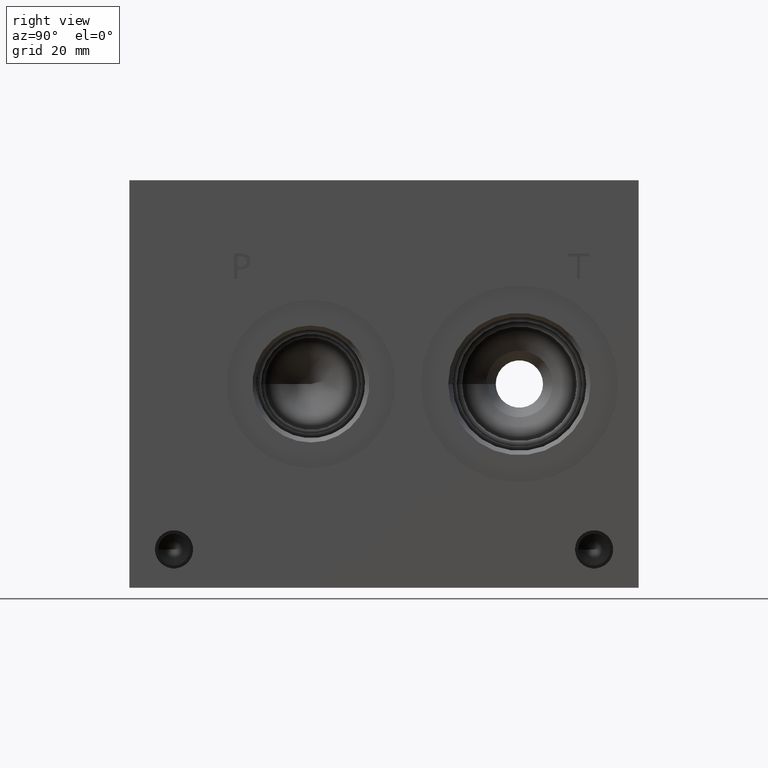
[diagram: clean part render]
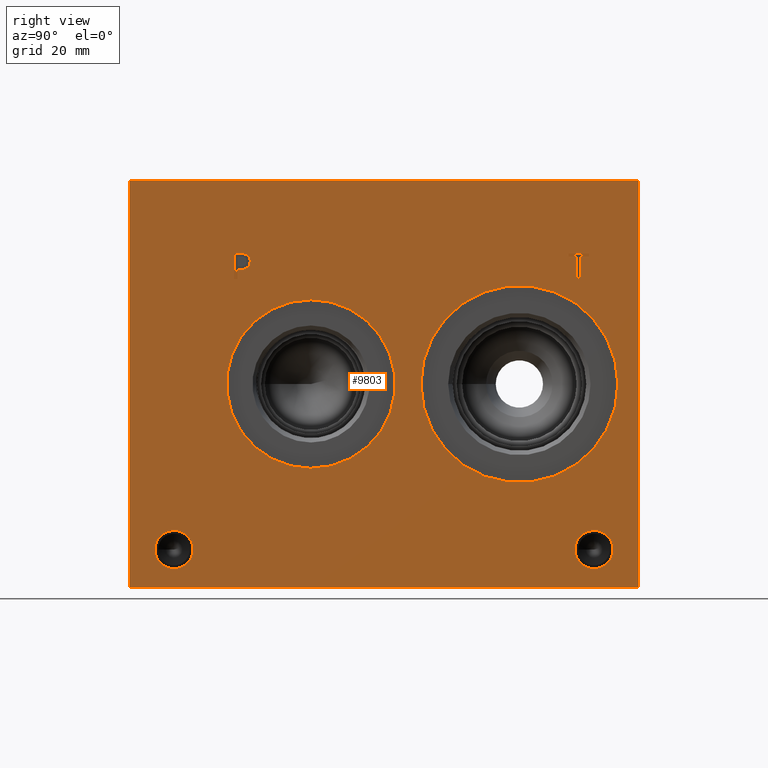
[diagram: same view with one face highlighted and labeled with its STEP entity id]
A machine part, right view. The second image highlights one B-rep face of the part: STEP entity #9803.
In plain terms, the highlighted planar face has unit normal (1, 0, 0).
Its self-contained STEP definition (entity closure, byte-faithful):
#103=CIRCLE('',#10338,21.0185);
#104=CIRCLE('',#10339,21.0185);
#105=CIRCLE('',#10340,24.5618);
#106=CIRCLE('',#10341,24.5618);
#107=CIRCLE('',#10342,4.7625);
#108=CIRCLE('',#10343,4.7625);
#109=CIRCLE('',#10344,4.7625);
#110=CIRCLE('',#10345,4.7625);
#296=FACE_BOUND('',#1307,.T.);
#297=FACE_BOUND('',#1308,.T.);
#298=FACE_BOUND('',#1309,.T.);
#299=FACE_BOUND('',#1310,.T.);
#300=FACE_BOUND('',#1311,.T.);
#301=FACE_BOUND('',#1312,.T.);
#378=B_SPLINE_CURVE_WITH_KNOTS('',2,(#13229,#13230,#13231,#13232),
 .UNSPECIFIED.,.F.,.F.,(3,1,3),(0.,1.,2.),.UNSPECIFIED.);
#380=B_SPLINE_CURVE_WITH_KNOTS('',2,(#13250,#13251,#13252,#13253),
 .UNSPECIFIED.,.F.,.F.,(3,1,3),(0.,1.,2.),.UNSPECIFIED.);
#382=B_SPLINE_CURVE_WITH_KNOTS('',2,(#13299,#13300,#13301,#13302),
 .UNSPECIFIED.,.F.,.F.,(3,1,3),(0.,1.,2.),.UNSPECIFIED.);
#384=B_SPLINE_CURVE_WITH_KNOTS('',2,(#13317,#13318,#13319,#13320),
 .UNSPECIFIED.,.F.,.F.,(3,1,3),(0.,1.,2.),.UNSPECIFIED.);
#777=FACE_OUTER_BOUND('',#1306,.T.);
#1306=EDGE_LOOP('',(#6341,#6342,#6343,#6344));
#1307=EDGE_LOOP('',(#6345,#6346,#6347,#6348,#6349,#6350,#6351,#6352));
#1308=EDGE_LOOP('',(#6353,#6354));
#1309=EDGE_LOOP('',(#6355,#6356));
#1310=EDGE_LOOP('',(#6357,#6358));
#1311=EDGE_LOOP('',(#6359,#6360));
#1312=EDGE_LOOP('',(#6361,#6362,#6363,#6364,#6365,#6366,#6367,#6368,#6369));
#1882=LINE('',#13079,#2857);
#1886=LINE('',#13087,#2861);
#1889=LINE('',#13093,#2864);
#1892=LINE('',#13099,#2867);
#1895=LINE('',#13105,#2870);
#1898=LINE('',#13111,#2873);
#1901=LINE('',#13117,#2876);
#1904=LINE('',#13122,#2879);
#1922=LINE('',#13262,#2897);
#1925=LINE('',#13268,#2900);
#1928=LINE('',#13274,#2903);
#1931=LINE('',#13280,#2906);
#1934=LINE('',#13286,#2909);
#1938=LINE('',#13329,#2913);
#1939=LINE('',#13331,#2914);
#1940=LINE('',#13333,#2915);
#1941=LINE('',#13334,#2916);
#2857=VECTOR('',#10916,10.);
#2861=VECTOR('',#10922,10.);
#2864=VECTOR('',#10927,10.);
#2867=VECTOR('',#10932,10.);
#2870=VECTOR('',#10937,10.);
#2873=VECTOR('',#10942,10.);
#2876=VECTOR('',#10947,10.);
#2879=VECTOR('',#10952,10.);
#2897=VECTOR('',#10980,10.);
#2900=VECTOR('',#10985,10.);
#2903=VECTOR('',#10990,10.);
#2906=VECTOR('',#10995,10.);
#2909=VECTOR('',#11000,10.);
#2913=VECTOR('',#11008,10.);
#2914=VECTOR('',#11009,10.);
#2915=VECTOR('',#11010,10.);
#2916=VECTOR('',#11011,10.);
#3832=VERTEX_POINT('',#13077);
#3833=VERTEX_POINT('',#13078);
#3836=VERTEX_POINT('',#13086);
#3838=VERTEX_POINT('',#13092);
#3840=VERTEX_POINT('',#13098);
#3842=VERTEX_POINT('',#13104);
#3844=VERTEX_POINT('',#13110);
#3846=VERTEX_POINT('',#13116);
#3862=VERTEX_POINT('',#13227);
#3863=VERTEX_POINT('',#13228);
#3866=VERTEX_POINT('',#13249);
#3868=VERTEX_POINT('',#13261);
#3870=VERTEX_POINT('',#13267);
#3872=VERTEX_POINT('',#13273);
#3874=VERTEX_POINT('',#13279);
#3876=VERTEX_POINT('',#13285);
#3878=VERTEX_POINT('',#13298);
#3880=VERTEX_POINT('',#13327);
#3881=VERTEX_POINT('',#13328);
#3882=VERTEX_POINT('',#13330);
#3883=VERTEX_POINT('',#13332);
#3884=VERTEX_POINT('',#13335);
#3885=VERTEX_POINT('',#13336);
#3886=VERTEX_POINT('',#13339);
#3887=VERTEX_POINT('',#13340);
#3888=VERTEX_POINT('',#13343);
#3889=VERTEX_POINT('',#13344);
#3890=VERTEX_POINT('',#13347);
#3891=VERTEX_POINT('',#13348);
#4800=EDGE_CURVE('',#3832,#3833,#1882,.T.);
#4804=EDGE_CURVE('',#3836,#3832,#1886,.T.);
#4807=EDGE_CURVE('',#3838,#3836,#1889,.T.);
#4810=EDGE_CURVE('',#3840,#3838,#1892,.T.);
#4813=EDGE_CURVE('',#3842,#3840,#1895,.T.);
#4816=EDGE_CURVE('',#3844,#3842,#1898,.T.);
#4819=EDGE_CURVE('',#3846,#3844,#1901,.T.);
#4822=EDGE_CURVE('',#3833,#3846,#1904,.T.);
#4845=EDGE_CURVE('',#3862,#3863,#378,.T.);
#4849=EDGE_CURVE('',#3866,#3862,#380,.T.);
#4852=EDGE_CURVE('',#3868,#3866,#1922,.T.);
#4855=EDGE_CURVE('',#3870,#3868,#1925,.T.);
#4858=EDGE_CURVE('',#3872,#3870,#1928,.T.);
#4861=EDGE_CURVE('',#3874,#3872,#1931,.T.);
#4864=EDGE_CURVE('',#3876,#3874,#1934,.T.);
#4867=EDGE_CURVE('',#3878,#3876,#382,.T.);
#4870=EDGE_CURVE('',#3863,#3878,#384,.T.);
#4872=EDGE_CURVE('',#3880,#3881,#1938,.T.);
#4873=EDGE_CURVE('',#3881,#3882,#1939,.T.);
#4874=EDGE_CURVE('',#3883,#3882,#1940,.T.);
#4875=EDGE_CURVE('',#3880,#3883,#1941,.T.);
#4876=EDGE_CURVE('',#3884,#3885,#103,.T.);
#4877=EDGE_CURVE('',#3885,#3884,#104,.T.);
#4878=EDGE_CURVE('',#3886,#3887,#105,.T.);
#4879=EDGE_CURVE('',#3887,#3886,#106,.T.);
#4880=EDGE_CURVE('',#3888,#3889,#107,.T.);
#4881=EDGE_CURVE('',#3889,#3888,#108,.T.);
#4882=EDGE_CURVE('',#3890,#3891,#109,.T.);
#4883=EDGE_CURVE('',#3891,#3890,#110,.T.);
#6341=ORIENTED_EDGE('',*,*,#4872,.T.);
#6342=ORIENTED_EDGE('',*,*,#4873,.T.);
#6343=ORIENTED_EDGE('',*,*,#4874,.F.);
#6344=ORIENTED_EDGE('',*,*,#4875,.F.);
#6345=ORIENTED_EDGE('',*,*,#4800,.T.);
#6346=ORIENTED_EDGE('',*,*,#4822,.T.);
#6347=ORIENTED_EDGE('',*,*,#4819,.T.);
#6348=ORIENTED_EDGE('',*,*,#4816,.T.);
#6349=ORIENTED_EDGE('',*,*,#4813,.T.);
#6350=ORIENTED_EDGE('',*,*,#4810,.T.);
#6351=ORIENTED_EDGE('',*,*,#4807,.T.);
#6352=ORIENTED_EDGE('',*,*,#4804,.T.);
#6353=ORIENTED_EDGE('',*,*,#4876,.T.);
#6354=ORIENTED_EDGE('',*,*,#4877,.T.);
#6355=ORIENTED_EDGE('',*,*,#4878,.T.);
#6356=ORIENTED_EDGE('',*,*,#4879,.T.);
#6357=ORIENTED_EDGE('',*,*,#4880,.T.);
#6358=ORIENTED_EDGE('',*,*,#4881,.T.);
#6359=ORIENTED_EDGE('',*,*,#4882,.T.);
#6360=ORIENTED_EDGE('',*,*,#4883,.T.);
#6361=ORIENTED_EDGE('',*,*,#4845,.T.);
#6362=ORIENTED_EDGE('',*,*,#4870,.T.);
#6363=ORIENTED_EDGE('',*,*,#4867,.T.);
#6364=ORIENTED_EDGE('',*,*,#4864,.T.);
#6365=ORIENTED_EDGE('',*,*,#4861,.T.);
#6366=ORIENTED_EDGE('',*,*,#4858,.T.);
#6367=ORIENTED_EDGE('',*,*,#4855,.T.);
#6368=ORIENTED_EDGE('',*,*,#4852,.T.);
#6369=ORIENTED_EDGE('',*,*,#4849,.T.);
#9081=PLANE('',#10337);
#9803=ADVANCED_FACE('',(#777,#296,#297,#298,#299,#300,#301),#9081,.T.);
#10337=AXIS2_PLACEMENT_3D('',#13326,#11006,#11007);
#10338=AXIS2_PLACEMENT_3D('',#13337,#11012,#11013);
#10339=AXIS2_PLACEMENT_3D('',#13338,#11014,#11015);
#10340=AXIS2_PLACEMENT_3D('',#13341,#11016,#11017);
#10341=AXIS2_PLACEMENT_3D('',#13342,#11018,#11019);
#10342=AXIS2_PLACEMENT_3D('',#13345,#11020,#11021);
#10343=AXIS2_PLACEMENT_3D('',#13346,#11022,#11023);
#10344=AXIS2_PLACEMENT_3D('',#13349,#11024,#11025);
#10345=AXIS2_PLACEMENT_3D('',#13350,#11026,#11027);
#10916=DIRECTION('',(0.,-1.,0.));
#10922=DIRECTION('',(0.,0.,-1.));
#10927=DIRECTION('',(0.,-1.,0.));
#10932=DIRECTION('',(0.,0.,-1.));
#10937=DIRECTION('',(0.,1.,0.));
#10942=DIRECTION('',(0.,0.,1.));
#10947=DIRECTION('',(0.,-1.,0.));
#10952=DIRECTION('',(0.,0.,1.));
#10980=DIRECTION('',(0.,1.,0.));
#10985=DIRECTION('',(0.,0.,1.));
#10990=DIRECTION('',(0.,-1.,0.));
#10995=DIRECTION('',(0.,0.,-1.));
#11000=DIRECTION('',(0.,-1.,0.));
#11006=DIRECTION('center_axis',(1.,0.,0.));
#11007=DIRECTION('ref_axis',(0.,1.,0.));
#11008=DIRECTION('',(0.,1.,0.));
#11009=DIRECTION('',(0.,0.,1.));
#11010=DIRECTION('',(0.,1.,0.));
#11011=DIRECTION('',(0.,0.,1.));
#11012=DIRECTION('center_axis',(-1.,0.,0.));
#11013=DIRECTION('ref_axis',(0.,0.,-1.));
#11014=DIRECTION('center_axis',(-1.,0.,0.));
#11015=DIRECTION('ref_axis',(0.,0.,-1.));
#11016=DIRECTION('center_axis',(-1.,0.,0.));
#11017=DIRECTION('ref_axis',(0.,1.,0.));
#11018=DIRECTION('center_axis',(-1.,0.,0.));
#11019=DIRECTION('ref_axis',(0.,1.,0.));
#11020=DIRECTION('center_axis',(-1.,0.,0.));
#11021=DIRECTION('ref_axis',(0.,1.,0.));
#11022=DIRECTION('center_axis',(-1.,0.,0.));
#11023=DIRECTION('ref_axis',(0.,1.,0.));
#11024=DIRECTION('center_axis',(-1.,0.,0.));
#11025=DIRECTION('ref_axis',(0.,1.,0.));
#11026=DIRECTION('center_axis',(-1.,0.,0.));
#11027=DIRECTION('ref_axis',(0.,1.,0.));
#13077=CARTESIAN_POINT('',(82.55,112.417765271453,76.962));
#13078=CARTESIAN_POINT('',(82.55,111.573843079914,76.962));
#13079=CARTESIAN_POINT('',(82.55,56.2088826357265,76.962));
#13086=CARTESIAN_POINT('',(82.55,112.417765271453,82.5607033194815));
#13087=CARTESIAN_POINT('',(82.55,112.417765271453,41.2803516597408));
#13092=CARTESIAN_POINT('',(82.55,114.548154218388,82.5607033194815));
#13093=CARTESIAN_POINT('',(82.55,57.274077109194,82.5607033194815));
#13098=CARTESIAN_POINT('',(82.55,114.548154218388,83.3119999046326));
#13099=CARTESIAN_POINT('',(82.55,114.548154218388,41.6559999523163));
#13104=CARTESIAN_POINT('',(82.55,109.443454132978,83.3119999046326));
#13105=CARTESIAN_POINT('',(82.55,54.7217270664892,83.3119999046326));
#13110=CARTESIAN_POINT('',(82.55,109.443454132978,82.5607033194815));
#13111=CARTESIAN_POINT('',(82.55,109.443454132978,41.2803516597408));
#13116=CARTESIAN_POINT('',(82.55,111.573843079914,82.5607033194815));
#13117=CARTESIAN_POINT('',(82.55,55.7869215399568,82.5607033194815));
#13122=CARTESIAN_POINT('',(82.55,111.573843079914,38.481));
#13227=CARTESIAN_POINT('',(82.55,29.3767672023594,82.9157681439707));
#13228=CARTESIAN_POINT('',(82.55,30.133209654532,81.397737372604));
#13229=CARTESIAN_POINT('Ctrl Pts',(82.55,29.3767672023594,82.9157681439707));
#13230=CARTESIAN_POINT('Ctrl Pts',(82.55,29.7318320268486,82.6739123939564));
#13231=CARTESIAN_POINT('Ctrl Pts',(82.55,30.133209654532,81.9277616758269));
#13232=CARTESIAN_POINT('Ctrl Pts',(82.55,30.133209654532,81.397737372604));
#13249=CARTESIAN_POINT('',(82.55,27.7146521543883,83.3119999046326));
#13250=CARTESIAN_POINT('Ctrl Pts',(82.55,27.7146521543883,83.3119999046326));
#13251=CARTESIAN_POINT('Ctrl Pts',(82.55,28.2806975267624,83.3119999046326));
#13252=CARTESIAN_POINT('Ctrl Pts',(82.55,29.073161048086,83.1267486918556));
#13253=CARTESIAN_POINT('Ctrl Pts',(82.55,29.3767672023594,82.9157681439707));
#13261=CARTESIAN_POINT('',(82.55,26.1194333776978,83.3119999046326));
#13262=CARTESIAN_POINT('',(82.55,13.0597166888489,83.3119999046326));
#13267=CARTESIAN_POINT('',(82.55,26.1194333776978,76.962));
#13268=CARTESIAN_POINT('',(82.55,26.1194333776978,38.481));
#13273=CARTESIAN_POINT('',(82.55,26.9633555692373,76.962));
#13274=CARTESIAN_POINT('',(82.55,13.4816777846186,76.962));
#13279=CARTESIAN_POINT('',(82.55,26.9633555692373,79.3290988299279));
#13280=CARTESIAN_POINT('',(82.55,26.9633555692373,39.6645494149639));
#13285=CARTESIAN_POINT('',(82.55,27.6786310852372,79.3290988299279));
#13286=CARTESIAN_POINT('',(82.55,13.8393155426186,79.3290988299279));
#13298=CARTESIAN_POINT('',(82.55,29.5774560162011,79.9877698086904));
#13299=CARTESIAN_POINT('Ctrl Pts',(82.55,29.5774560162011,79.9877698086904));
#13300=CARTESIAN_POINT('Ctrl Pts',(82.55,29.2481205268198,79.6635801863307));
#13301=CARTESIAN_POINT('Ctrl Pts',(82.55,28.3578855320861,79.3290988299279));
#13302=CARTESIAN_POINT('Ctrl Pts',(82.55,27.6786310852372,79.3290988299279));
#13317=CARTESIAN_POINT('Ctrl Pts',(82.55,30.133209654532,81.397737372604));
#13318=CARTESIAN_POINT('Ctrl Pts',(82.55,30.133209654532,80.9860680108774));
#13319=CARTESIAN_POINT('Ctrl Pts',(82.55,29.8398952343018,80.2450631597695));
#13320=CARTESIAN_POINT('Ctrl Pts',(82.55,29.5774560162011,79.9877698086904));
#13326=CARTESIAN_POINT('Origin',(82.55,0.,0.));
#13327=CARTESIAN_POINT('',(82.55,0.,0.));
#13328=CARTESIAN_POINT('',(82.55,127.,0.));
#13329=CARTESIAN_POINT('',(82.55,0.,0.));
#13330=CARTESIAN_POINT('',(82.55,127.,101.6));
#13331=CARTESIAN_POINT('',(82.55,127.,0.));
#13332=CARTESIAN_POINT('',(82.55,0.,101.6));
#13333=CARTESIAN_POINT('',(82.55,0.,101.6));
#13334=CARTESIAN_POINT('',(82.55,0.,0.));
#13335=CARTESIAN_POINT('',(82.55,45.2882,29.7815));
#13336=CARTESIAN_POINT('',(82.55,45.2882,71.8185));
#13337=CARTESIAN_POINT('Origin',(82.55,45.2882,50.8));
#13338=CARTESIAN_POINT('Origin',(82.55,45.2882,50.8));
#13339=CARTESIAN_POINT('',(82.55,121.8184,50.8));
#13340=CARTESIAN_POINT('',(82.55,72.6948,50.8));
#13341=CARTESIAN_POINT('Origin',(82.55,97.2566,50.8));
#13342=CARTESIAN_POINT('Origin',(82.55,97.2566,50.8));
#13343=CARTESIAN_POINT('',(82.55,120.6373,9.525));
#13344=CARTESIAN_POINT('',(82.55,111.1123,9.525));
#13345=CARTESIAN_POINT('Origin',(82.55,115.8748,9.525));
#13346=CARTESIAN_POINT('Origin',(82.55,115.8748,9.525));
#13347=CARTESIAN_POINT('',(82.55,15.8877,9.525));
#13348=CARTESIAN_POINT('',(82.55,6.3627,9.525));
#13349=CARTESIAN_POINT('Origin',(82.55,11.1252,9.525));
#13350=CARTESIAN_POINT('Origin',(82.55,11.1252,9.525));